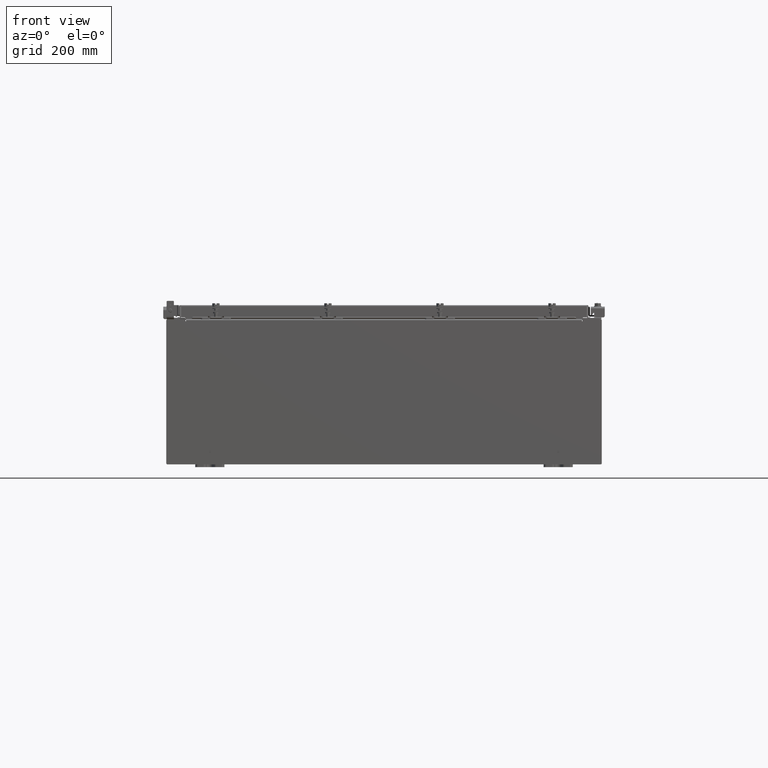
[diagram: clean part render]
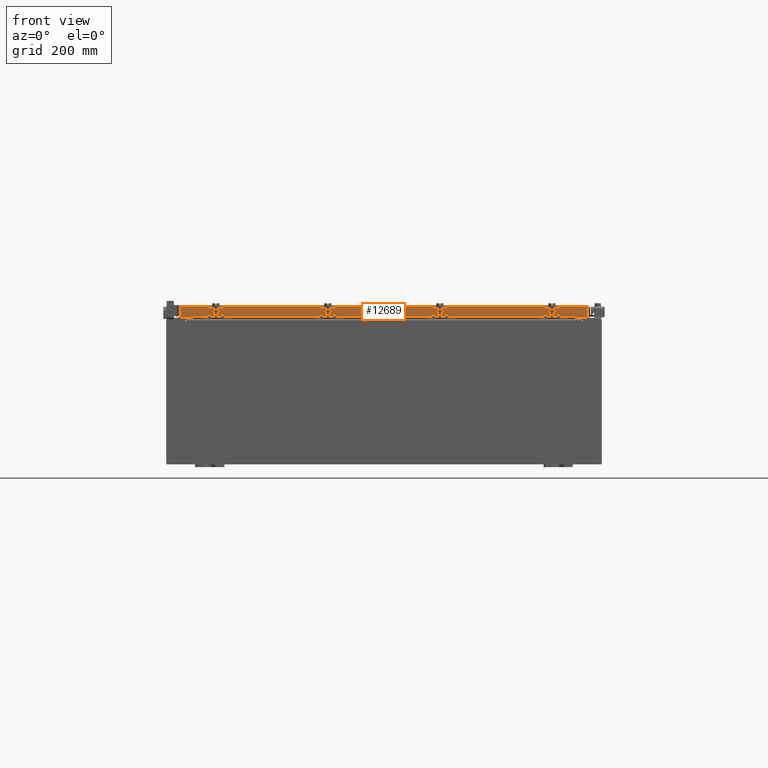
[diagram: same view with one face highlighted and labeled with its STEP entity id]
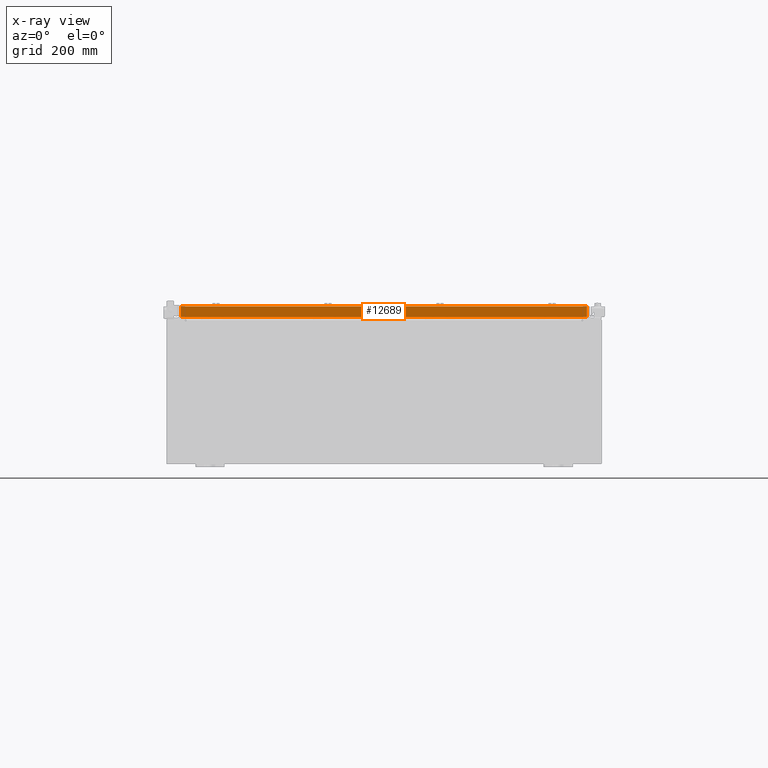
[diagram: x-ray of the same camera — body ghosted, the highlighted face saturated]
A machine part, front view. The second image highlights one B-rep face of the part: STEP entity #12689.
The next image is the same camera in x-ray: the body ghosted, the highlighted face saturated — about 0% of this face is hidden behind the body in this view.
In plain terms, the highlighted planar face has unit normal (-0, 1, -0).
Its self-contained STEP definition (entity closure, byte-faithful):
#384 = DIRECTION ( 'NONE',  ( 1.000000000000000000, 3.418789178101959700E-031, -9.318824769679573900E-046 ) ) ;
#853 = DIRECTION ( 'NONE',  ( -1.000000000000000000, 0.0000000000000000000, 0.0000000000000000000 ) ) ;
#1070 = VERTEX_POINT ( 'NONE', #16840 ) ;
#1666 = CARTESIAN_POINT ( 'NONE',  ( 13.98915786437626700, -17.09400000000000100, -0.07469999999999978000 ) ) ;
#1685 = FACE_OUTER_BOUND ( 'NONE', #22277, .T. ) ;
#3389 = VECTOR ( 'NONE', #7417, 39.37007874015748100 ) ;
#3400 = CARTESIAN_POINT ( 'NONE',  ( 13.98915786437626500, -17.09400000000000100, -0.08770000000000007000 ) ) ;
#3945 = LINE ( 'NONE', #1666, #23428 ) ;
#4089 = CARTESIAN_POINT ( 'NONE',  ( -13.98915786437626900, -17.09400000000000500, -0.8499999999999963100 ) ) ;
#4374 = VERTEX_POINT ( 'NONE', #4089 ) ;
#4648 = EDGE_CURVE ( 'NONE', #15293, #8954, #9365, .T. ) ;
#4680 = CARTESIAN_POINT ( 'NONE',  ( 13.23915786437626900, -17.09399999999999800, -0.8500000000000006400 ) ) ;
#4901 = DIRECTION ( 'NONE',  ( 0.0000000000000000000, 2.818880942772360100E-015, 1.000000000000000000 ) ) ;
#6949 = CARTESIAN_POINT ( 'NONE',  ( 13.23915786437626900, -17.09399999999999800, -0.8500000000000006400 ) ) ;
#7092 = VECTOR ( 'NONE', #15561, 39.37007874015748100 ) ;
#7417 = DIRECTION ( 'NONE',  ( -1.000000000000000000, 4.379057701015054300E-047, 1.212817869044015600E-016 ) ) ;
#7783 = VECTOR ( 'NONE', #853, 39.37007874015748100 ) ;
#7946 = ORIENTED_EDGE ( 'NONE', *, *, #13754, .T. ) ;
#8352 = LINE ( 'NONE', #4680, #7783 ) ;
#8404 = EDGE_CURVE ( 'NONE', #21331, #15293, #3945, .T. ) ;
#8755 = VECTOR ( 'NONE', #9198, 39.37007874015748100 ) ;
#8954 = VERTEX_POINT ( 'NONE', #6949 ) ;
#9198 = DIRECTION ( 'NONE',  ( -1.000000000000000000, 4.379057701015054300E-047, 1.212817869044015600E-016 ) ) ;
#9217 = DIRECTION ( 'NONE',  ( -0.0000000000000000000, -2.818880942772360100E-015, -1.000000000000000000 ) ) ;
#9365 = LINE ( 'NONE', #24267, #8755 ) ;
#9525 = EDGE_CURVE ( 'NONE', #8954, #18140, #8352, .T. ) ;
#9865 = CARTESIAN_POINT ( 'NONE',  ( -13.98915786437626900, -17.09400000000000100, 4.844676449176230700E-014 ) ) ;
#10556 = CARTESIAN_POINT ( 'NONE',  ( 5.844078221047488800E-030, -17.09400000000000100, 4.844676449176230700E-014 ) ) ;
#11799 = CARTESIAN_POINT ( 'NONE',  ( 14.07799999999999800, -17.09400000000000100, -0.08770000000000007000 ) ) ;
#12148 = LINE ( 'NONE', #9865, #7092 ) ;
#12689 = ADVANCED_FACE ( 'NONE', ( #1685 ), #14191, .F. ) ;
#12725 = VECTOR ( 'NONE', #384, 39.37007874015748100 ) ;
#13501 = LINE ( 'NONE', #22488, #3389 ) ;
#13740 = EDGE_CURVE ( 'NONE', #1070, #21331, #22125, .T. ) ;
#13754 = EDGE_CURVE ( 'NONE', #1070, #4374, #12148, .T. ) ;
#14191 = PLANE ( 'NONE',  #23456 ) ;
#14888 = ORIENTED_EDGE ( 'NONE', *, *, #23228, .F. ) ;
#15293 = VERTEX_POINT ( 'NONE', #22963 ) ;
#15561 = DIRECTION ( 'NONE',  ( 0.0000000000000000000, -2.818880942772360100E-015, -1.000000000000000000 ) ) ;
#16237 = DIRECTION ( 'NONE',  ( -3.418789178101958800E-031, 1.000000000000000000, -2.818880942772360100E-015 ) ) ;
#16840 = CARTESIAN_POINT ( 'NONE',  ( -13.98915786437626900, -17.09400000000000100, -0.08770000000000007000 ) ) ;
#18140 = VERTEX_POINT ( 'NONE', #21732 ) ;
#19573 = ORIENTED_EDGE ( 'NONE', *, *, #8404, .F. ) ;
#20827 = ORIENTED_EDGE ( 'NONE', *, *, #13740, .F. ) ;
#21331 = VERTEX_POINT ( 'NONE', #3400 ) ;
#21732 = CARTESIAN_POINT ( 'NONE',  ( -13.23915786437626900, -17.09399999999999800, -0.8500000000000006400 ) ) ;
#21953 = ORIENTED_EDGE ( 'NONE', *, *, #9525, .F. ) ;
#22125 = LINE ( 'NONE', #11799, #12725 ) ;
#22277 = EDGE_LOOP ( 'NONE', ( #20827, #7946, #14888, #21953, #22386, #19573 ) ) ;
#22386 = ORIENTED_EDGE ( 'NONE', *, *, #4648, .F. ) ;
#22488 = CARTESIAN_POINT ( 'NONE',  ( 14.07799999999999900, -17.09400000000000500, -0.8499999999999996400 ) ) ;
#22963 = CARTESIAN_POINT ( 'NONE',  ( 13.98915786437626700, -17.09400000000000500, -0.8499999999999996400 ) ) ;
#23228 = EDGE_CURVE ( 'NONE', #18140, #4374, #13501, .T. ) ;
#23428 = VECTOR ( 'NONE', #9217, 39.37007874015748100 ) ;
#23456 = AXIS2_PLACEMENT_3D ( 'NONE', #10556, #16237, #4901 ) ;
#24267 = CARTESIAN_POINT ( 'NONE',  ( 14.07799999999999900, -17.09400000000000500, -0.8499999999999996400 ) ) ;